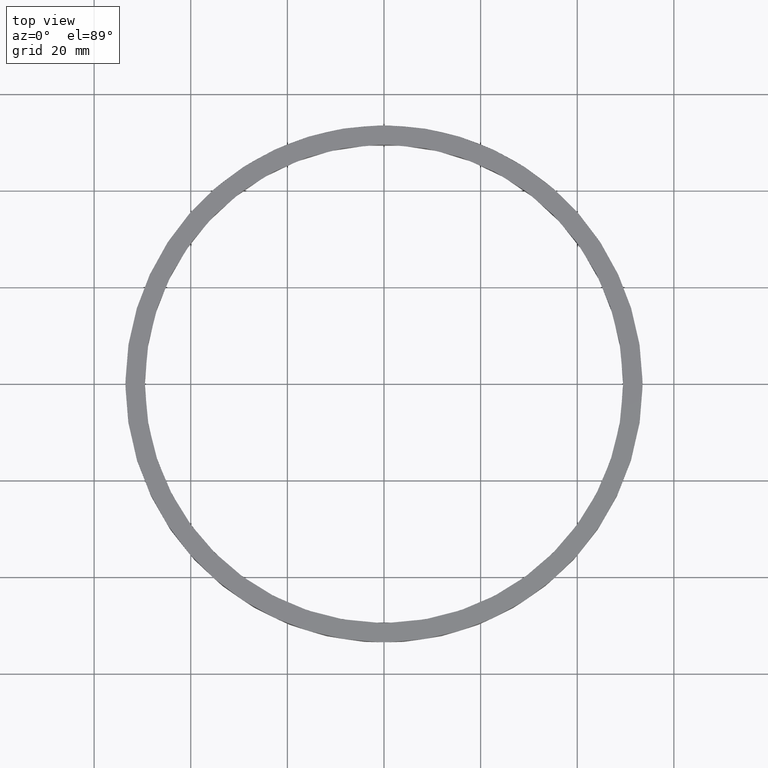
[diagram: clean part render]
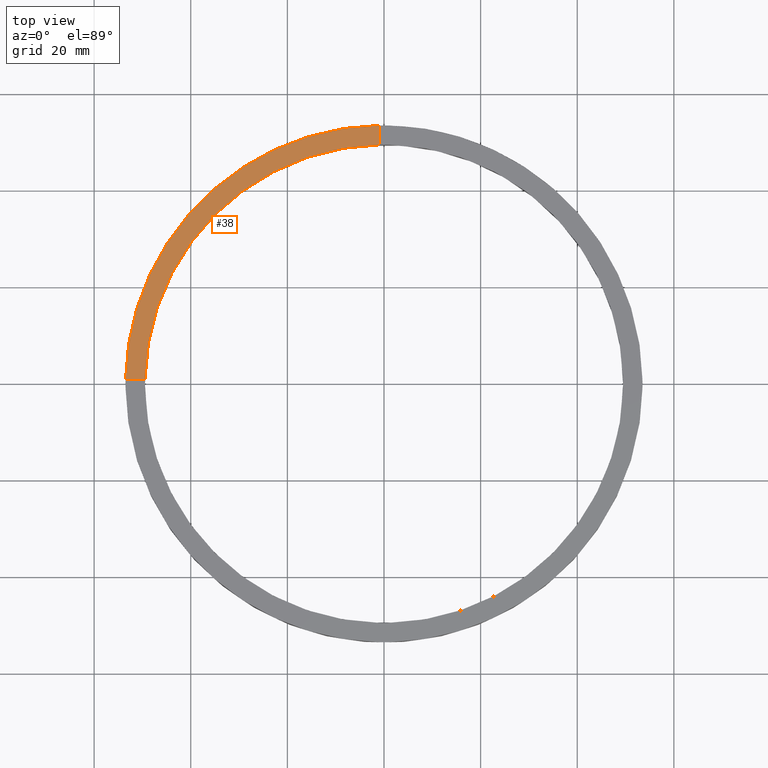
[diagram: same view with one face highlighted and labeled with its STEP entity id]
A machine part, top view. The second image highlights one B-rep face of the part: STEP entity #38.
In plain terms, the highlighted planar face has unit normal (0, 0, 1).
Its self-contained STEP definition (entity closure, byte-faithful):
#10 = DIRECTION ( 'NONE',  ( 1.000000000000000000, 0.000000000000000000, 0.000000000000000000 ) ) ;
#15 = CARTESIAN_POINT ( 'NONE',  ( -49.48989795907849043, 0.9999999999999681366, 5.000000000000000000 ) ) ;
#38 = ADVANCED_FACE ( 'NONE', ( #564 ), #139, .T. ) ;
#63 = DIRECTION ( 'NONE',  ( -0.000000000000000000, -1.000000000000000000, -0.000000000000000000 ) ) ;
#72 = EDGE_CURVE ( 'NONE', #200, #168, #571, .T. ) ;
#79 = EDGE_CURVE ( 'NONE', #472, #189, #306, .T. ) ;
#120 = EDGE_CURVE ( 'NONE', #189, #200, #567, .T. ) ;
#121 = CIRCLE ( 'NONE', #511, 53.50000000000000000 ) ;
#135 = DIRECTION ( 'NONE',  ( 1.000000000000000000, 0.000000000000000000, 0.000000000000000000 ) ) ;
#139 = PLANE ( 'NONE',  #761 ) ;
#164 = ORIENTED_EDGE ( 'NONE', *, *, #79, .F. ) ;
#168 = VERTEX_POINT ( 'NONE', #365 ) ;
#183 = EDGE_LOOP ( 'NONE', ( #164, #697, #610, #671 ) ) ;
#189 = VERTEX_POINT ( 'NONE', #459 ) ;
#200 = VERTEX_POINT ( 'NONE', #15 ) ;
#238 = DIRECTION ( 'NONE',  ( 1.000000000000000000, 0.000000000000000000, -0.000000000000000000 ) ) ;
#240 = CARTESIAN_POINT ( 'NONE',  ( 0.000000000000000000, 0.000000000000000000, 5.000000000000000000 ) ) ;
#256 = CARTESIAN_POINT ( 'NONE',  ( 0.000000000000000000, 0.000000000000000000, 5.000000000000000000 ) ) ;
#287 = VECTOR ( 'NONE', #762, 1000.000000000000000 ) ;
#306 = LINE ( 'NONE', #662, #308 ) ;
#308 = VECTOR ( 'NONE', #63, 1000.000000000000000 ) ;
#316 = CARTESIAN_POINT ( 'NONE',  ( 0.000000000000000000, 0.000000000000000000, 5.000000000000000000 ) ) ;
#349 = CARTESIAN_POINT ( 'NONE',  ( -43.50000000000018474, 0.9999999999999694689, 5.000000000000000000 ) ) ;
#365 = CARTESIAN_POINT ( 'NONE',  ( -53.49065338916696533, 0.9999999999999674705, 5.000000000000000000 ) ) ;
#459 = CARTESIAN_POINT ( 'NONE',  ( -1.000000000000027311, 49.48989795907849043, 5.000000000000000000 ) ) ;
#472 = VERTEX_POINT ( 'NONE', #734 ) ;
#511 = AXIS2_PLACEMENT_3D ( 'NONE', #256, #542, #10 ) ;
#528 = EDGE_CURVE ( 'NONE', #472, #168, #121, .T. ) ;
#542 = DIRECTION ( 'NONE',  ( 0.000000000000000000, 0.000000000000000000, 1.000000000000000000 ) ) ;
#564 = FACE_OUTER_BOUND ( 'NONE', #183, .T. ) ;
#567 = CIRCLE ( 'NONE', #755, 49.50000000000000711 ) ;
#571 = LINE ( 'NONE', #349, #287 ) ;
#603 = DIRECTION ( 'NONE',  ( 0.000000000000000000, 0.000000000000000000, 1.000000000000000000 ) ) ;
#610 = ORIENTED_EDGE ( 'NONE', *, *, #72, .F. ) ;
#662 = CARTESIAN_POINT ( 'NONE',  ( -1.000000000000027311, 43.50000000000000000, 5.000000000000000000 ) ) ;
#671 = ORIENTED_EDGE ( 'NONE', *, *, #120, .F. ) ;
#697 = ORIENTED_EDGE ( 'NONE', *, *, #528, .T. ) ;
#734 = CARTESIAN_POINT ( 'NONE',  ( -1.000000000000027311, 53.49065338916696533, 5.000000000000000000 ) ) ;
#755 = AXIS2_PLACEMENT_3D ( 'NONE', #316, #603, #135 ) ;
#761 = AXIS2_PLACEMENT_3D ( 'NONE', #240, #771, #238 ) ;
#762 = DIRECTION ( 'NONE',  ( -1.000000000000000000, -1.951563910473907735E-16, 0.000000000000000000 ) ) ;
#771 = DIRECTION ( 'NONE',  ( 0.000000000000000000, 0.000000000000000000, 1.000000000000000000 ) ) ;